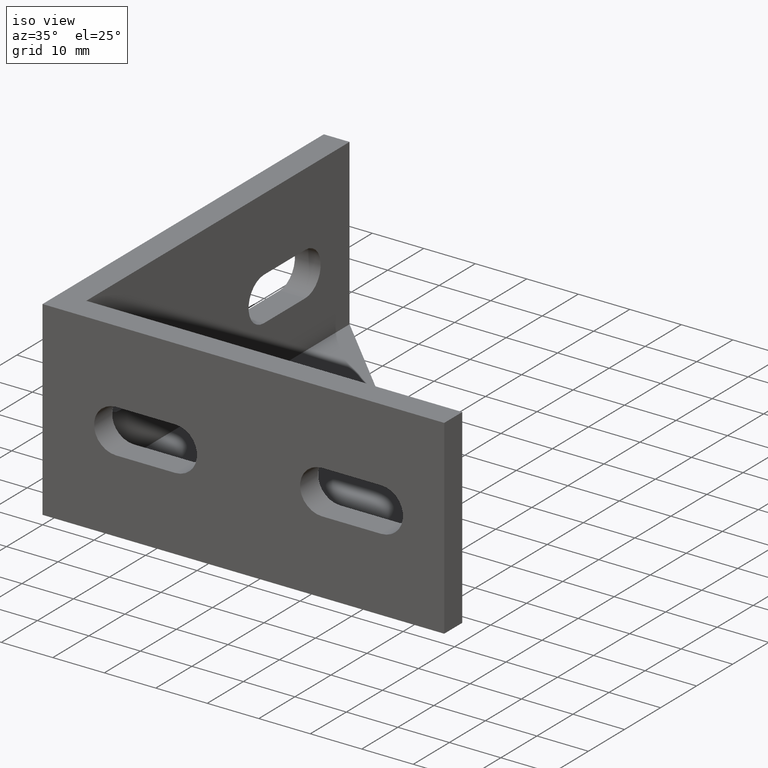
[diagram: clean part render]
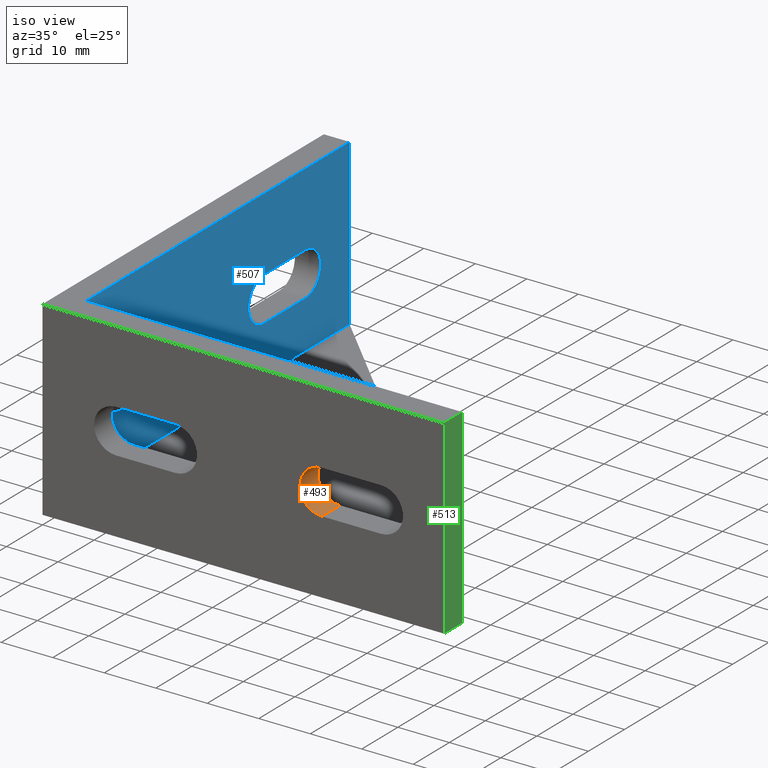
[diagram: same view with three faces highlighted in distinct colors, each labeled with its STEP entity id]
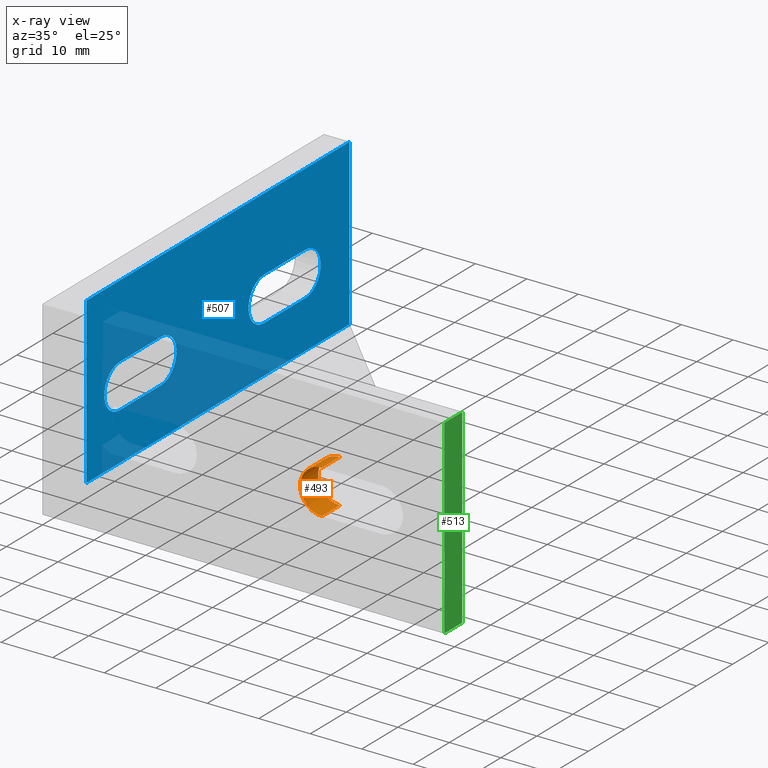
[diagram: x-ray of the same camera — body ghosted, the three highlighted faces saturated]
A machine part, iso view with three faces highlighted in distinct colors.
The next image is the same camera in x-ray (body ghosted, the three faces saturated) — at least one of them is partly hidden behind the body in this view.
Their STEP definitions:

[orange] entity #493 — the highlighted cylindrical surface (edge-blend (fillet) strip) has radius 4.25 mm, axis along (0, 1, 0).
#45=FACE_OUTER_BOUND('',#71,.T.);
#71=EDGE_LOOP('',(#357,#358,#359,#360));
#109=LINE('',#747,#163);
#110=LINE('',#750,#164);
#163=VECTOR('',#607,10.);
#164=VECTOR('',#610,10.);
#213=CIRCLE('',#544,4.25);
#214=CIRCLE('',#545,4.25);
#233=VERTEX_POINT('',#743);
#234=VERTEX_POINT('',#744);
#235=VERTEX_POINT('',#746);
#236=VERTEX_POINT('',#748);
#283=EDGE_CURVE('',#233,#234,#213,.T.);
#284=EDGE_CURVE('',#235,#233,#109,.T.);
#285=EDGE_CURVE('',#236,#235,#214,.T.);
#286=EDGE_CURVE('',#236,#234,#110,.T.);
#357=ORIENTED_EDGE('',*,*,#283,.F.);
#358=ORIENTED_EDGE('',*,*,#284,.F.);
#359=ORIENTED_EDGE('',*,*,#285,.F.);
#360=ORIENTED_EDGE('',*,*,#286,.T.);
#483=CYLINDRICAL_SURFACE('',#543,4.25);
#493=ADVANCED_FACE('',(#45),#483,.F.);
#543=AXIS2_PLACEMENT_3D('',#742,#603,#604);
#544=AXIS2_PLACEMENT_3D('',#745,#605,#606);
#545=AXIS2_PLACEMENT_3D('',#749,#608,#609);
#603=DIRECTION('center_axis',(0.,1.,0.));
#604=DIRECTION('ref_axis',(0.,0.,1.));
#605=DIRECTION('center_axis',(0.,-1.,0.));
#606=DIRECTION('ref_axis',(0.,0.,1.));
#607=DIRECTION('',(0.,1.,0.));
#608=DIRECTION('center_axis',(0.,1.,0.));
#609=DIRECTION('ref_axis',(0.,0.,1.));
#610=DIRECTION('',(0.,1.,0.));
#742=CARTESIAN_POINT('Origin',(54.25,0.,0.));
#743=CARTESIAN_POINT('',(54.25,5.,4.25));
#744=CARTESIAN_POINT('',(54.25,5.,-4.25));
#745=CARTESIAN_POINT('Origin',(54.25,5.,0.));
#746=CARTESIAN_POINT('',(54.25,0.,4.25));
#747=CARTESIAN_POINT('',(54.25,0.,4.25));
#748=CARTESIAN_POINT('',(54.25,0.,-4.25));
#749=CARTESIAN_POINT('Origin',(54.25,0.,0.));
#750=CARTESIAN_POINT('',(54.25,0.,-4.25));

[blue] entity #507 — the highlighted planar face has unit normal (1, 0, 0).
#15=FACE_BOUND('',#86,.T.);
#16=FACE_BOUND('',#87,.T.);
#33=PLANE('',#569);
#59=FACE_OUTER_BOUND('',#85,.T.);
#85=EDGE_LOOP('',(#412,#413,#414,#415));
#86=EDGE_LOOP('',(#416,#417,#418,#419));
#87=EDGE_LOOP('',(#420,#421,#422,#423));
#119=LINE('',#777,#173);
#123=LINE('',#788,#177);
#127=LINE('',#801,#181);
#131=LINE('',#812,#185);
#138=LINE('',#826,#192);
#139=LINE('',#829,#193);
#140=LINE('',#831,#194);
#141=LINE('',#832,#195);
#173=VECTOR('',#637,10.);
#177=VECTOR('',#649,10.);
#181=VECTOR('',#661,10.);
#185=VECTOR('',#673,10.);
#192=VECTOR('',#684,10.);
#193=VECTOR('',#687,10.);
#194=VECTOR('',#688,10.);
#195=VECTOR('',#689,10.);
#217=CIRCLE('',#552,4.25);
#219=CIRCLE('',#556,4.25);
#221=CIRCLE('',#560,4.25);
#223=CIRCLE('',#564,4.25);
#241=VERTEX_POINT('',#767);
#242=VERTEX_POINT('',#768);
#245=VERTEX_POINT('',#776);
#247=VERTEX_POINT('',#782);
#249=VERTEX_POINT('',#791);
#250=VERTEX_POINT('',#792);
#253=VERTEX_POINT('',#800);
#255=VERTEX_POINT('',#806);
#259=VERTEX_POINT('',#818);
#261=VERTEX_POINT('',#824);
#262=VERTEX_POINT('',#828);
#263=VERTEX_POINT('',#830);
#295=EDGE_CURVE('',#241,#242,#217,.T.);
#299=EDGE_CURVE('',#242,#245,#119,.T.);
#302=EDGE_CURVE('',#245,#247,#219,.T.);
#305=EDGE_CURVE('',#247,#241,#123,.T.);
#307=EDGE_CURVE('',#249,#250,#221,.T.);
#311=EDGE_CURVE('',#250,#253,#127,.T.);
#314=EDGE_CURVE('',#253,#255,#223,.T.);
#317=EDGE_CURVE('',#255,#249,#131,.T.);
#324=EDGE_CURVE('',#261,#259,#138,.T.);
#325=EDGE_CURVE('',#259,#262,#139,.T.);
#326=EDGE_CURVE('',#263,#262,#140,.T.);
#327=EDGE_CURVE('',#261,#263,#141,.T.);
#412=ORIENTED_EDGE('',*,*,#324,.T.);
#413=ORIENTED_EDGE('',*,*,#325,.T.);
#414=ORIENTED_EDGE('',*,*,#326,.F.);
#415=ORIENTED_EDGE('',*,*,#327,.F.);
#416=ORIENTED_EDGE('',*,*,#302,.T.);
#417=ORIENTED_EDGE('',*,*,#305,.T.);
#418=ORIENTED_EDGE('',*,*,#295,.T.);
#419=ORIENTED_EDGE('',*,*,#299,.T.);
#420=ORIENTED_EDGE('',*,*,#314,.T.);
#421=ORIENTED_EDGE('',*,*,#317,.T.);
#422=ORIENTED_EDGE('',*,*,#307,.T.);
#423=ORIENTED_EDGE('',*,*,#311,.T.);
#507=ADVANCED_FACE('',(#59,#15,#16),#33,.T.);
#552=AXIS2_PLACEMENT_3D('',#769,#629,#630);
#556=AXIS2_PLACEMENT_3D('',#783,#642,#643);
#560=AXIS2_PLACEMENT_3D('',#793,#653,#654);
#564=AXIS2_PLACEMENT_3D('',#807,#666,#667);
#569=AXIS2_PLACEMENT_3D('',#827,#685,#686);
#629=DIRECTION('center_axis',(-1.,0.,0.));
#630=DIRECTION('ref_axis',(0.,0.,1.));
#637=DIRECTION('',(0.,-1.,0.));
#642=DIRECTION('center_axis',(-1.,0.,0.));
#643=DIRECTION('ref_axis',(0.,0.,-1.));
#649=DIRECTION('',(0.,1.,0.));
#653=DIRECTION('center_axis',(-1.,0.,0.));
#654=DIRECTION('ref_axis',(0.,0.,1.));
#661=DIRECTION('',(0.,-1.,0.));
#666=DIRECTION('center_axis',(-1.,0.,0.));
#667=DIRECTION('ref_axis',(0.,0.,-1.));
#673=DIRECTION('',(0.,1.,1.93082265152201E-16));
#684=DIRECTION('',(0.,1.,0.));
#685=DIRECTION('center_axis',(1.,0.,0.));
#686=DIRECTION('ref_axis',(0.,1.,0.));
#687=DIRECTION('',(0.,0.,1.));
#688=DIRECTION('',(0.,1.,0.));
#689=DIRECTION('',(0.,0.,1.));
#767=CARTESIAN_POINT('',(5.,65.75,4.25));
#768=CARTESIAN_POINT('',(5.,65.75,-4.25));
#769=CARTESIAN_POINT('Origin',(5.,65.75,0.));
#776=CARTESIAN_POINT('',(5.,54.25,-4.25));
#777=CARTESIAN_POINT('',(5.,27.125,-4.25));
#782=CARTESIAN_POINT('',(5.,54.25,4.25));
#783=CARTESIAN_POINT('Origin',(5.,54.25,0.));
#788=CARTESIAN_POINT('',(5.,32.875,4.25));
#791=CARTESIAN_POINT('',(5.,25.75,4.25000000000001));
#792=CARTESIAN_POINT('',(5.,25.75,-4.24999999999999));
#793=CARTESIAN_POINT('Origin',(5.,25.75,4.44089209850063E-15));
#800=CARTESIAN_POINT('',(5.,14.25,-4.24999999999999));
#801=CARTESIAN_POINT('',(5.,7.125,-4.24999999999999));
#806=CARTESIAN_POINT('',(5.,14.25,4.25000000000001));
#807=CARTESIAN_POINT('Origin',(5.,14.25,4.44089209850063E-15));
#812=CARTESIAN_POINT('',(5.,12.875,4.25000000000001));
#818=CARTESIAN_POINT('',(5.,78.,-13.5));
#824=CARTESIAN_POINT('',(5.,5.,-13.5));
#826=CARTESIAN_POINT('',(5.,15.4046987566545,-13.5));
#827=CARTESIAN_POINT('Origin',(5.,0.,0.));
#828=CARTESIAN_POINT('',(5.,78.,18.5));
#829=CARTESIAN_POINT('',(5.,78.,0.));
#830=CARTESIAN_POINT('',(5.,5.,18.5));
#831=CARTESIAN_POINT('',(5.,0.,18.5));
#832=CARTESIAN_POINT('',(5.,5.,0.));

[green] entity #513 — the highlighted planar face has unit normal (1, 0, 0).
#39=PLANE('',#575);
#65=FACE_OUTER_BOUND('',#97,.T.);
#97=EDGE_LOOP('',(#464,#465,#466,#467,#468));
#136=LINE('',#822,#190);
#144=LINE('',#839,#198);
#150=LINE('',#851,#204);
#153=LINE('',#856,#207);
#154=LINE('',#858,#208);
#190=VECTOR('',#680,10.);
#198=VECTOR('',#694,10.);
#204=VECTOR('',#704,10.);
#207=VECTOR('',#711,10.);
#208=VECTOR('',#714,10.);
#257=VERTEX_POINT('',#815);
#260=VERTEX_POINT('',#820);
#266=VERTEX_POINT('',#838);
#269=VERTEX_POINT('',#848);
#270=VERTEX_POINT('',#850);
#322=EDGE_CURVE('',#257,#260,#136,.T.);
#330=EDGE_CURVE('',#257,#266,#144,.T.);
#336=EDGE_CURVE('',#269,#270,#150,.T.);
#339=EDGE_CURVE('',#260,#270,#153,.T.);
#340=EDGE_CURVE('',#266,#269,#154,.T.);
#464=ORIENTED_EDGE('',*,*,#322,.T.);
#465=ORIENTED_EDGE('',*,*,#339,.T.);
#466=ORIENTED_EDGE('',*,*,#336,.F.);
#467=ORIENTED_EDGE('',*,*,#340,.F.);
#468=ORIENTED_EDGE('',*,*,#330,.F.);
#513=ADVANCED_FACE('',(#65),#39,.T.);
#575=AXIS2_PLACEMENT_3D('',#857,#712,#713);
#680=DIRECTION('',(0.,0.,1.));
#694=DIRECTION('',(0.,-1.,0.));
#704=DIRECTION('',(0.,1.,0.));
#711=DIRECTION('',(0.,0.,1.));
#712=DIRECTION('center_axis',(1.,0.,0.));
#713=DIRECTION('ref_axis',(0.,1.,0.));
#714=DIRECTION('',(0.,0.,1.));
#815=CARTESIAN_POINT('',(78.,5.,-18.5));
#820=CARTESIAN_POINT('',(78.,5.,-13.5));
#822=CARTESIAN_POINT('',(78.,5.,0.));
#838=CARTESIAN_POINT('',(78.,0.,-18.5));
#839=CARTESIAN_POINT('',(78.,0.,-18.5));
#848=CARTESIAN_POINT('',(78.,0.,18.5));
#850=CARTESIAN_POINT('',(78.,5.,18.5));
#851=CARTESIAN_POINT('',(78.,0.,18.5));
#856=CARTESIAN_POINT('',(78.,5.,0.));
#857=CARTESIAN_POINT('Origin',(78.,0.,0.));
#858=CARTESIAN_POINT('',(78.,0.,0.));